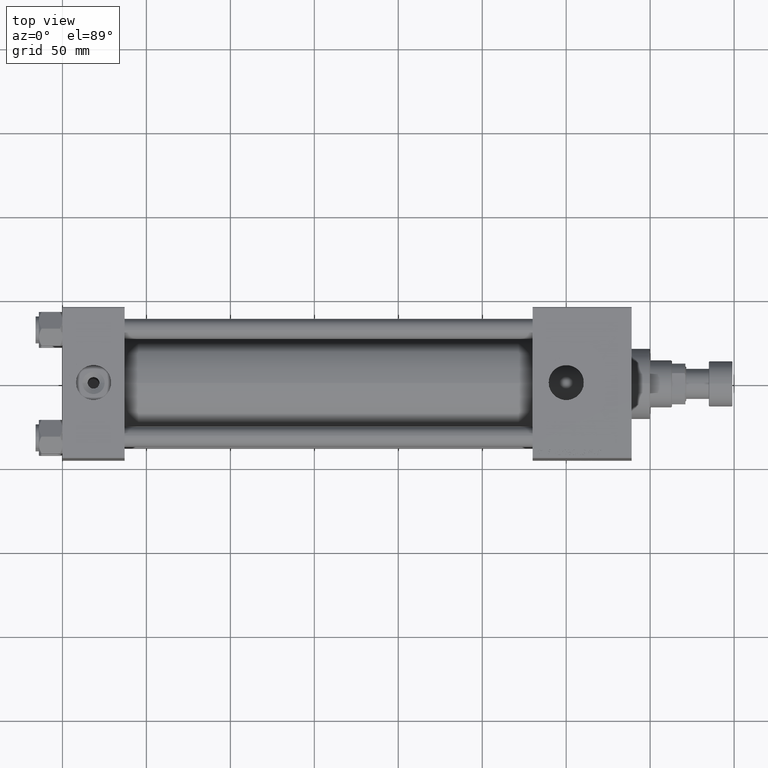
[diagram: clean part render]
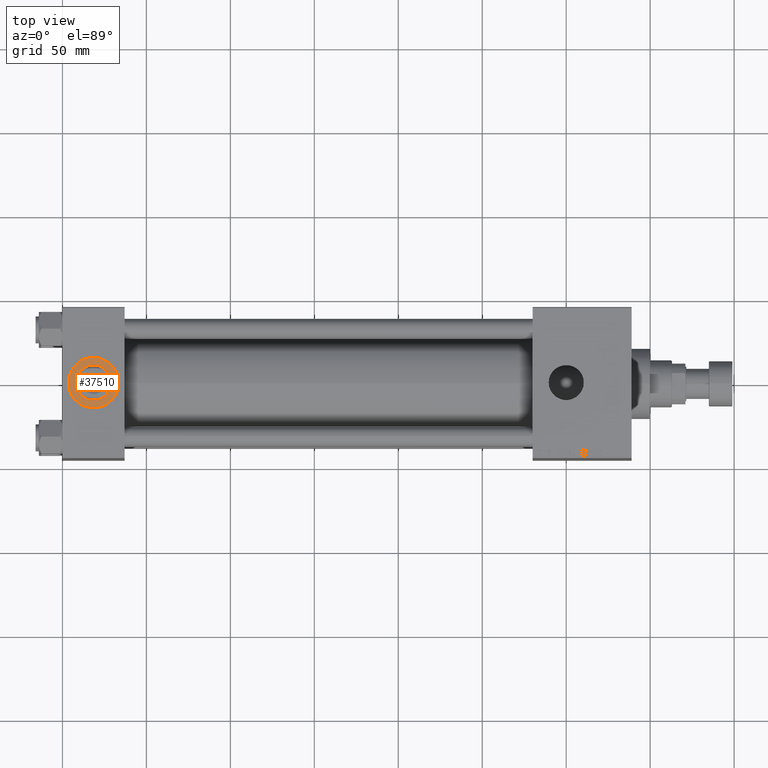
[diagram: same view with one face highlighted and labeled with its STEP entity id]
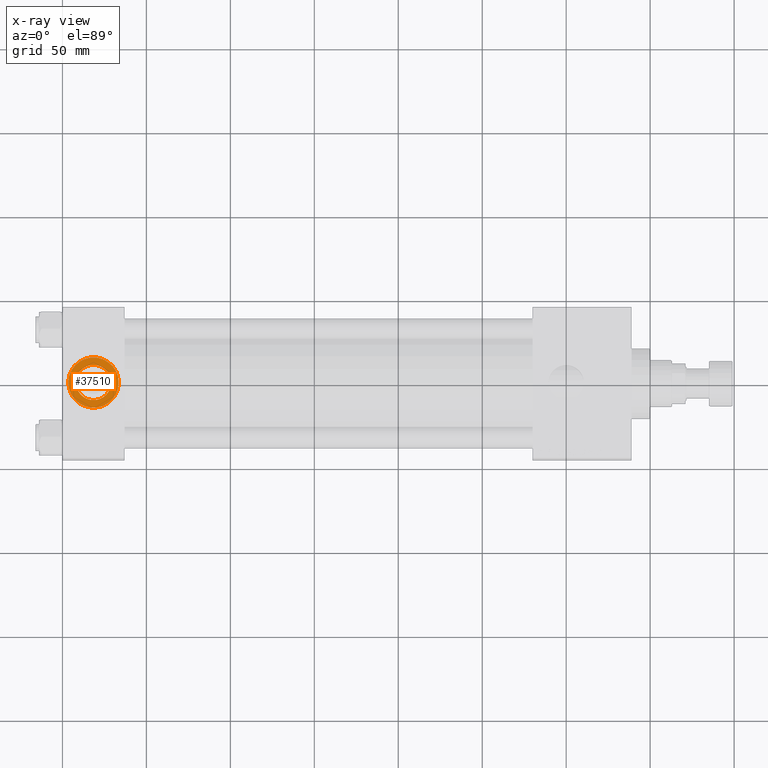
[diagram: x-ray of the same camera — body ghosted, the highlighted face saturated]
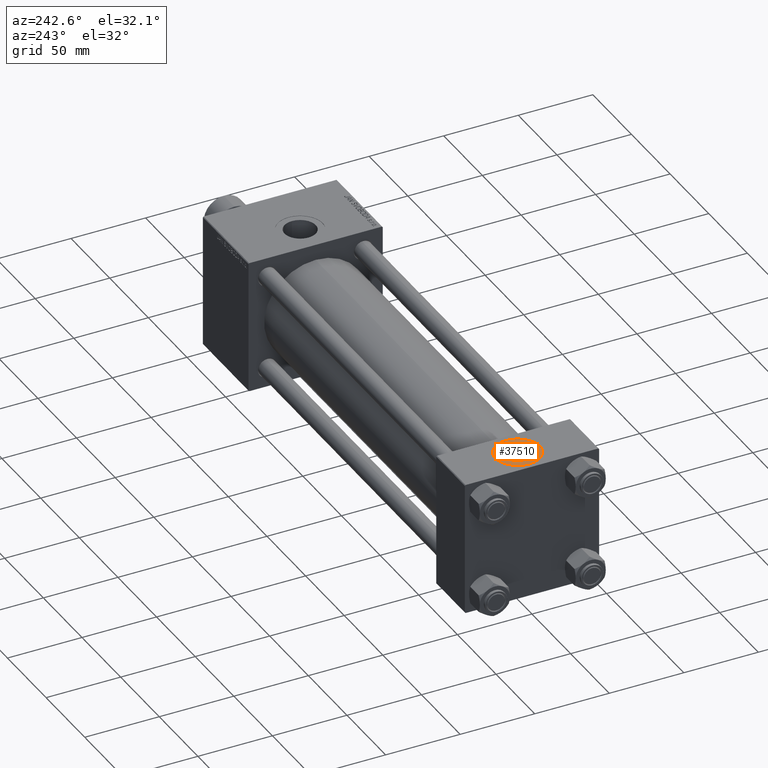
[diagram: same view with one face highlighted and labeled with its STEP entity id]
A machine part, top view. The second image highlights one B-rep face of the part: STEP entity #37510.
The next image is the same camera in x-ray: the body ghosted, the highlighted face saturated — about 0% of this face is hidden behind the body in this view.
A second angle (auxiliary view) of the same face is appended — the face is thin or edge-on in the first view.
In plain terms, the highlighted planar face has unit normal (0, 0, 1).
Its self-contained STEP definition (entity closure, byte-faithful):
#494 = AXIS2_PLACEMENT_3D ( 'NONE', #27210, #31471, #6946 ) ;
#2556 = VERTEX_POINT ( 'NONE', #19137 ) ;
#6830 = CIRCLE ( 'NONE', #34912, 10.48000000000000043 ) ;
#6946 = DIRECTION ( 'NONE',  ( 1.000000000000000000, 0.000000000000000000, 0.000000000000000000 ) ) ;
#8146 = ORIENTED_EDGE ( 'NONE', *, *, #27418, .T. ) ;
#14479 = DIRECTION ( 'NONE',  ( 0.000000000000000000, 0.000000000000000000, 1.000000000000000000 ) ) ;
#18061 = EDGE_CURVE ( 'NONE', #2556, #43663, #6830, .T. ) ;
#19137 = CARTESIAN_POINT ( 'NONE',  ( 28.98000000000000043, -8.673617379884038628E-15, 44.80000000000000426 ) ) ;
#21661 = VERTEX_POINT ( 'NONE', #28143 ) ;
#21699 = CARTESIAN_POINT ( 'NONE',  ( 18.50000000000000000, -8.673617379884038628E-15, 44.80000000000000426 ) ) ;
#22629 = DIRECTION ( 'NONE',  ( 1.000000000000000000, 0.000000000000000000, 0.000000000000000000 ) ) ;
#22799 = CARTESIAN_POINT ( 'NONE',  ( 18.50000000000000000, -8.673617379884038628E-15, 44.80000000000000426 ) ) ;
#25094 = EDGE_LOOP ( 'NONE', ( #36080, #8146 ) ) ;
#25698 = DIRECTION ( 'NONE',  ( 1.000000000000000000, 0.000000000000000000, -0.000000000000000000 ) ) ;
#27210 = CARTESIAN_POINT ( 'NONE',  ( 18.50000000000000000, -8.673617379884038628E-15, 44.80000000000000426 ) ) ;
#27418 = EDGE_CURVE ( 'NONE', #31897, #21661, #48795, .T. ) ;
#27447 = AXIS2_PLACEMENT_3D ( 'NONE', #33734, #29722, #42286 ) ;
#28143 = CARTESIAN_POINT ( 'NONE',  ( 33.50000000000000000, -8.673617379884038628E-15, 44.80000000000000426 ) ) ;
#29722 = DIRECTION ( 'NONE',  ( 0.000000000000000000, 0.000000000000000000, 1.000000000000000000 ) ) ;
#29953 = FACE_OUTER_BOUND ( 'NONE', #25094, .T. ) ;
#31471 = DIRECTION ( 'NONE',  ( 0.000000000000000000, 0.000000000000000000, 1.000000000000000000 ) ) ;
#31897 = VERTEX_POINT ( 'NONE', #40642 ) ;
#33688 = CIRCLE ( 'NONE', #494, 10.48000000000000043 ) ;
#33734 = CARTESIAN_POINT ( 'NONE',  ( 18.50000000000000000, -8.673617379884038628E-15, 44.80000000000000426 ) ) ;
#34912 = AXIS2_PLACEMENT_3D ( 'NONE', #22799, #38535, #42028 ) ;
#36080 = ORIENTED_EDGE ( 'NONE', *, *, #38972, .T. ) ;
#37510 = ADVANCED_FACE ( 'NONE', ( #41715, #29953 ), #49978, .T. ) ;
#38535 = DIRECTION ( 'NONE',  ( 0.000000000000000000, 0.000000000000000000, 1.000000000000000000 ) ) ;
#38667 = EDGE_CURVE ( 'NONE', #43663, #2556, #33688, .T. ) ;
#38972 = EDGE_CURVE ( 'NONE', #21661, #31897, #48226, .T. ) ;
#40642 = CARTESIAN_POINT ( 'NONE',  ( 3.499999999999997780, -6.836647181163008250E-15, 44.80000000000000426 ) ) ;
#41715 = FACE_BOUND ( 'NONE', #52751, .T. ) ;
#41886 = ORIENTED_EDGE ( 'NONE', *, *, #38667, .F. ) ;
#42028 = DIRECTION ( 'NONE',  ( 1.000000000000000000, 0.000000000000000000, 0.000000000000000000 ) ) ;
#42286 = DIRECTION ( 'NONE',  ( 1.000000000000000000, 0.000000000000000000, 0.000000000000000000 ) ) ;
#43663 = VERTEX_POINT ( 'NONE', #45378 ) ;
#44840 = AXIS2_PLACEMENT_3D ( 'NONE', #51437, #47444, #22629 ) ;
#45378 = CARTESIAN_POINT ( 'NONE',  ( 8.019999999999999574, -7.390187534377611561E-15, 44.80000000000000426 ) ) ;
#47444 = DIRECTION ( 'NONE',  ( 0.000000000000000000, 0.000000000000000000, 1.000000000000000000 ) ) ;
#48226 = CIRCLE ( 'NONE', #44840, 15.00000000000000355 ) ;
#48762 = ORIENTED_EDGE ( 'NONE', *, *, #18061, .F. ) ;
#48795 = CIRCLE ( 'NONE', #27447, 15.00000000000000355 ) ;
#49978 = PLANE ( 'NONE',  #51562 ) ;
#51437 = CARTESIAN_POINT ( 'NONE',  ( 18.50000000000000000, -8.673617379884038628E-15, 44.80000000000000426 ) ) ;
#51562 = AXIS2_PLACEMENT_3D ( 'NONE', #21699, #14479, #25698 ) ;
#52751 = EDGE_LOOP ( 'NONE', ( #48762, #41886 ) ) ;